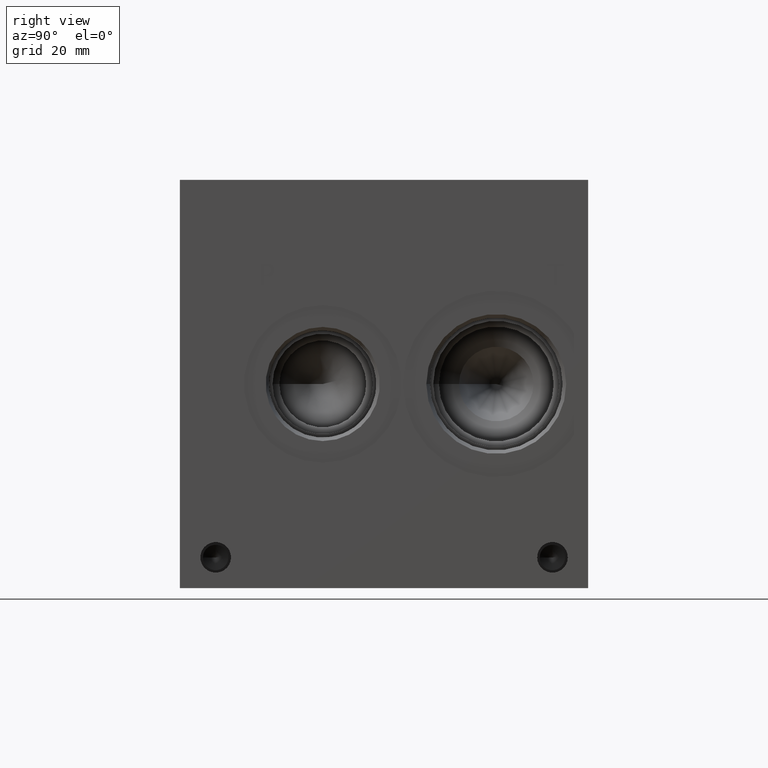
[diagram: clean part render]
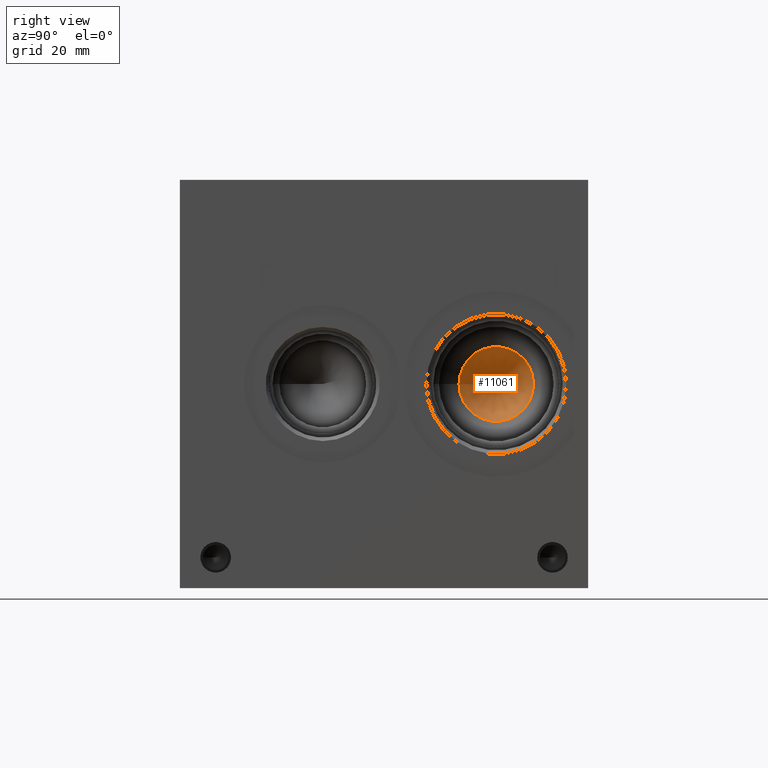
[diagram: same view with one face highlighted and labeled with its STEP entity id]
A machine part, right view. The second image highlights one B-rep face of the part: STEP entity #11061.
In plain terms, the highlighted conical surface has half-angle 15 deg.
Its self-contained STEP definition (entity closure, byte-faithful):
#53=CONICAL_SURFACE('',#11691,10.87755,0.261799387799149);
#300=CIRCLE('',#11674,11.5870638757419);
#1401=FACE_OUTER_BOUND('',#2036,.T.);
#2036=EDGE_LOOP('',(#9636,#9637,#9638));
#3076=LINE('',#19022,#4100);
#4100=VECTOR('',#13931,10.87755);
#5131=VERTEX_POINT('',#18987);
#5141=VERTEX_POINT('',#19021);
#6645=EDGE_CURVE('',#5131,#5131,#300,.T.);
#6661=EDGE_CURVE('',#5131,#5141,#3076,.T.);
#9636=ORIENTED_EDGE('',*,*,#6645,.T.);
#9637=ORIENTED_EDGE('',*,*,#6661,.T.);
#9638=ORIENTED_EDGE('',*,*,#6661,.F.);
#11061=ADVANCED_FACE('',(#1401),#53,.F.);
#11674=AXIS2_PLACEMENT_3D('',#18989,#13890,#13891);
#11691=AXIS2_PLACEMENT_3D('',#19020,#13929,#13930);
#13890=DIRECTION('center_axis',(1.,0.,0.));
#13891=DIRECTION('ref_axis',(0.,1.,0.));
#13929=DIRECTION('center_axis',(1.,0.,0.));
#13930=DIRECTION('ref_axis',(0.,1.,0.));
#13931=DIRECTION('',(-0.965925826289068,0.258819045102521,3.16961915143176E-17));
#18987=CARTESIAN_POINT('',(100.952312571073,86.8379361242581,63.5));
#18989=CARTESIAN_POINT('Origin',(100.952312571073,98.425,63.5));
#19020=CARTESIAN_POINT('Origin',(98.3043707381292,98.425,63.5));
#19021=CARTESIAN_POINT('',(57.7088014762583,98.425,63.5));
#19022=CARTESIAN_POINT('',(98.3043707381292,87.54745,63.5));